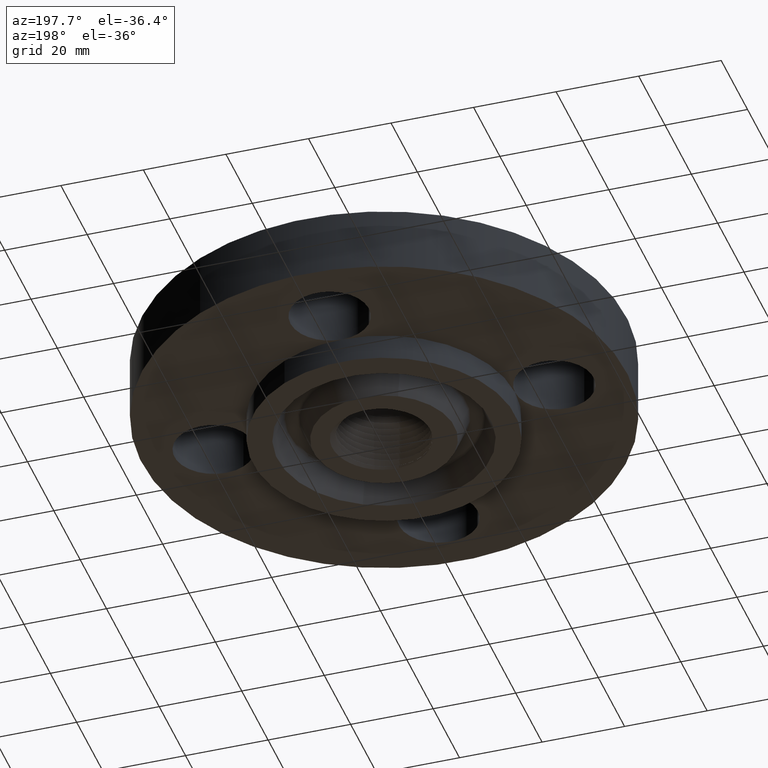
[diagram: clean part render]
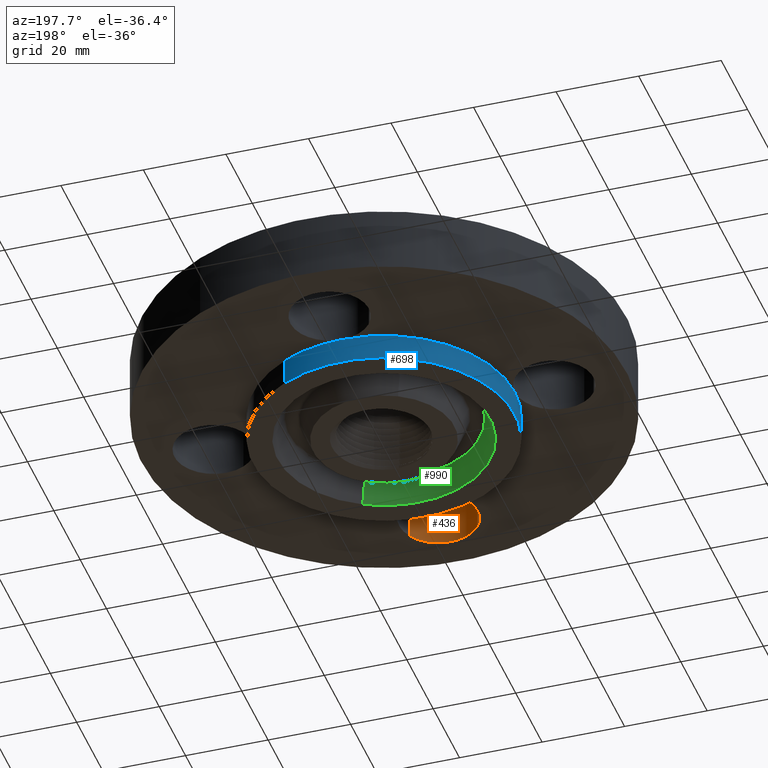
[diagram: same view with three faces highlighted in distinct colors, each labeled with its STEP entity id]
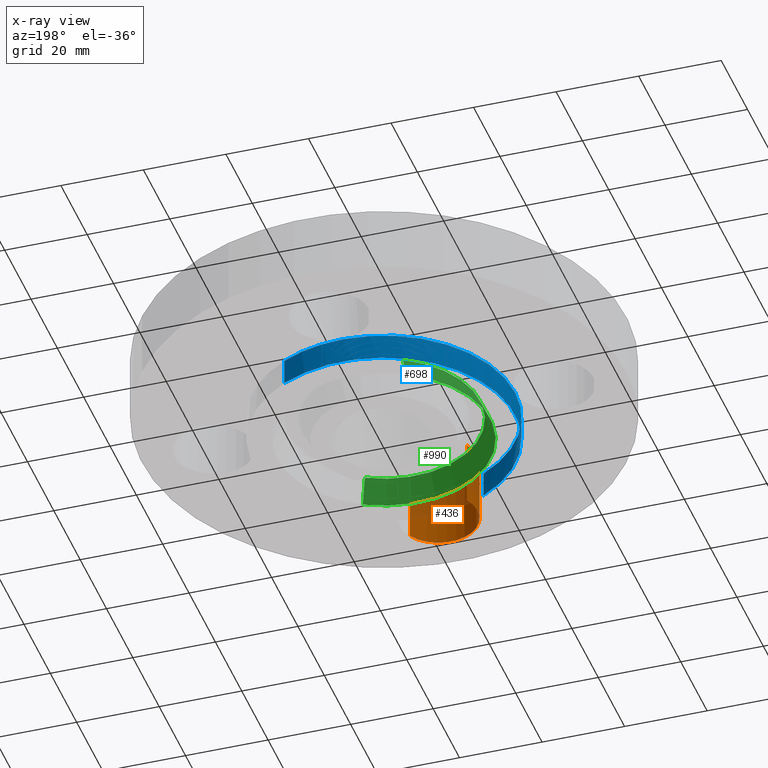
[diagram: x-ray of the same camera — body ghosted, the three highlighted faces saturated]
A machine part, auxiliary view with three faces highlighted in distinct colors.
The next image is the same camera in x-ray (body ghosted, the three faces saturated) — at least one of them is partly hidden behind the body in this view.
Their STEP definitions:

[orange] entity #436 — the highlighted cylindrical surface (partial cylindrical patch) has radius 9.525 mm, axis along (-0, 0, -1).
#375=AXIS2_PLACEMENT_3D('Cylinder Axis2P3D',#372,#373,#374) ;
#422=AXIS2_PLACEMENT_3D('Circle Axis2P3D',#420,#421,$) ;
#427=AXIS2_PLACEMENT_3D('Circle Axis2P3D',#425,#426,$) ;
#372=CARTESIAN_POINT('Axis2P3D Location',(1.99005104862E-016,-1.62500000001,0.616062992128)) ;
#377=CARTESIAN_POINT('Line Origine',(-0.32909346071,-1.44521542303,0.310000000001)) ;
#381=CARTESIAN_POINT('Vertex',(-0.32909346071,-1.44521542303,0.)) ;
#383=CARTESIAN_POINT('Vertex',(-0.32909346071,-1.44521542303,0.620000000002)) ;
#397=CARTESIAN_POINT('Vertex',(0.32909346071,-1.80478457698,0.)) ;
#400=CARTESIAN_POINT('Line Origine',(0.32909346071,-1.80478457698,0.310000000001)) ;
#404=CARTESIAN_POINT('Vertex',(0.32909346071,-1.80478457698,0.620000000002)) ;
#420=CARTESIAN_POINT('Axis2P3D Location',(1.99005104862E-016,-1.62500000001,0.)) ;
#425=CARTESIAN_POINT('Axis2P3D Location',(1.99005104862E-016,-1.62500000001,0.620000000002)) ;
#373=DIRECTION('Axis2P3D Direction',(-0.,0.,-0.0393700787402)) ;
#374=DIRECTION('Axis2P3D XDirection',(0.0345504945626,-0.0188750212049,-0.)) ;
#378=DIRECTION('Vector Direction',(0.,0.,-0.0393700787402)) ;
#401=DIRECTION('Vector Direction',(0.,0.,-0.0393700787402)) ;
#421=DIRECTION('Axis2P3D Direction',(-0.,0.,-0.0393700787402)) ;
#426=DIRECTION('Axis2P3D Direction',(-0.,0.,-0.0393700787402)) ;
#379=VECTOR('Line Direction',#378,0.0393700787402) ;
#402=VECTOR('Line Direction',#401,0.0393700787402) ;
#431=ORIENTED_EDGE('',*,*,#406,.F.) ;
#432=ORIENTED_EDGE('',*,*,#424,.T.) ;
#433=ORIENTED_EDGE('',*,*,#385,.T.) ;
#434=ORIENTED_EDGE('',*,*,#429,.F.) ;
#436=ADVANCED_FACE('PartBody',(#435),#376,.F.) ;
#423=CIRCLE('generated circle',#422,0.375000000001) ;
#428=CIRCLE('generated circle',#427,0.375000000001) ;
#376=CYLINDRICAL_SURFACE('generated cylinder',#375,0.375000000001) ;
#385=EDGE_CURVE('',#382,#384,#380,.F.) ;
#406=EDGE_CURVE('',#398,#405,#403,.F.) ;
#424=EDGE_CURVE('',#398,#382,#423,.T.) ;
#429=EDGE_CURVE('',#405,#384,#428,.T.) ;
#430=EDGE_LOOP('',(#431,#432,#433,#434)) ;
#435=FACE_OUTER_BOUND('',#430,.T.) ;
#380=LINE('Line',#377,#379) ;
#403=LINE('Line',#400,#402) ;
#382=VERTEX_POINT('',#381) ;
#384=VERTEX_POINT('',#383) ;
#398=VERTEX_POINT('',#397) ;
#405=VERTEX_POINT('',#404) ;

[blue] entity #698 — the highlighted cylindrical surface (partial cylindrical patch) has radius 31.75 mm, axis along (0, 0, -1).
#346=AXIS2_PLACEMENT_3D('Circle Axis2P3D',#344,#345,$) ;
#604=AXIS2_PLACEMENT_3D('Circle Axis2P3D',#602,#603,$) ;
#630=AXIS2_PLACEMENT_3D('Circle Axis2P3D',#628,#629,$) ;
#635=AXIS2_PLACEMENT_3D('Circle Axis2P3D',#633,#634,$) ;
#669=AXIS2_PLACEMENT_3D('Cylinder Axis2P3D',#666,#667,#668) ;
#339=CARTESIAN_POINT('Vertex',(0.599281923258,1.09697820237,-0.250000000001)) ;
#341=CARTESIAN_POINT('Vertex',(-0.599281923258,-1.09697820237,-0.250000000001)) ;
#344=CARTESIAN_POINT('Axis2P3D Location',(0.,0.,-0.250000000001)) ;
#455=CARTESIAN_POINT('Vertex',(-1.25000000001,-1.39870617276E-016,0.)) ;
#599=CARTESIAN_POINT('Vertex',(0.599281923258,1.09697820237,0.)) ;
#602=CARTESIAN_POINT('Axis2P3D Location',(0.,0.,0.)) ;
#606=CARTESIAN_POINT('Vertex',(3.90510912389E-015,1.25000000001,0.)) ;
#628=CARTESIAN_POINT('Axis2P3D Location',(0.,0.,0.)) ;
#633=CARTESIAN_POINT('Axis2P3D Location',(0.,0.,0.)) ;
#637=CARTESIAN_POINT('Vertex',(-0.599281923258,-1.09697820237,0.)) ;
#666=CARTESIAN_POINT('Axis2P3D Location',(0.,0.,0.375000000002)) ;
#671=CARTESIAN_POINT('Line Origine',(0.599281923258,1.09697820237,-0.125)) ;
#676=CARTESIAN_POINT('Line Origine',(-0.599281923258,-1.09697820237,-0.125)) ;
#345=DIRECTION('Axis2P3D Direction',(0.,0.,-0.0393700787402)) ;
#603=DIRECTION('Axis2P3D Direction',(0.,0.,-0.0393700787402)) ;
#629=DIRECTION('Axis2P3D Direction',(0.,0.,-0.0393700787402)) ;
#634=DIRECTION('Axis2P3D Direction',(0.,0.,-0.0393700787402)) ;
#667=DIRECTION('Axis2P3D Direction',(0.,0.,-0.0393700787402)) ;
#668=DIRECTION('Axis2P3D XDirection',(-0.0188750212049,-0.0345504945626,0.)) ;
#672=DIRECTION('Vector Direction',(0.,0.,-0.0393700787402)) ;
#677=DIRECTION('Vector Direction',(0.,0.,-0.0393700787402)) ;
#673=VECTOR('Line Direction',#672,0.0393700787402) ;
#678=VECTOR('Line Direction',#677,0.0393700787402) ;
#691=ORIENTED_EDGE('',*,*,#348,.F.) ;
#692=ORIENTED_EDGE('',*,*,#680,.T.) ;
#693=ORIENTED_EDGE('',*,*,#639,.T.) ;
#694=ORIENTED_EDGE('',*,*,#632,.T.) ;
#695=ORIENTED_EDGE('',*,*,#608,.T.) ;
#696=ORIENTED_EDGE('',*,*,#675,.F.) ;
#698=ADVANCED_FACE('PartBody',(#697),#670,.T.) ;
#347=CIRCLE('generated circle',#346,1.25000000001) ;
#605=CIRCLE('generated circle',#604,1.25000000001) ;
#631=CIRCLE('generated circle',#630,1.25000000001) ;
#636=CIRCLE('generated circle',#635,1.25000000001) ;
#670=CYLINDRICAL_SURFACE('generated cylinder',#669,1.25000000001) ;
#348=EDGE_CURVE('',#342,#340,#347,.T.) ;
#608=EDGE_CURVE('',#607,#600,#605,.T.) ;
#632=EDGE_CURVE('',#456,#607,#631,.T.) ;
#639=EDGE_CURVE('',#638,#456,#636,.T.) ;
#675=EDGE_CURVE('',#340,#600,#674,.F.) ;
#680=EDGE_CURVE('',#342,#638,#679,.F.) ;
#690=EDGE_LOOP('',(#691,#692,#693,#694,#695,#696)) ;
#697=FACE_OUTER_BOUND('',#690,.T.) ;
#674=LINE('Line',#671,#673) ;
#679=LINE('Line',#676,#678) ;
#340=VERTEX_POINT('',#339) ;
#342=VERTEX_POINT('',#341) ;
#456=VERTEX_POINT('',#455) ;
#600=VERTEX_POINT('',#599) ;
#607=VERTEX_POINT('',#606) ;
#638=VERTEX_POINT('',#637) ;

[green] entity #990 — the highlighted conical surface has half-angle 23 deg.
#355=AXIS2_PLACEMENT_3D('Circle Axis2P3D',#353,#354,$) ;
#936=AXIS2_PLACEMENT_3D('Circle Axis2P3D',#934,#935,$) ;
#972=AXIS2_PLACEMENT_3D('Cone Axis2P3D',#969,#970,#971) ;
#353=CARTESIAN_POINT('Axis2P3D Location',(-6.99353086378E-017,0.,-0.250000000001)) ;
#357=CARTESIAN_POINT('Vertex',(0.486916562647,-0.891294789423,-0.250000000001)) ;
#359=CARTESIAN_POINT('Vertex',(-0.486916562647,0.891294789423,-0.250000000001)) ;
#934=CARTESIAN_POINT('Axis2P3D Location',(0.,0.,-0.0190396522348)) ;
#938=CARTESIAN_POINT('Vertex',(-0.439915192472,0.805259358414,-0.0190396522348)) ;
#940=CARTESIAN_POINT('Vertex',(0.439915192472,-0.805259358414,-0.0190396522348)) ;
#969=CARTESIAN_POINT('Axis2P3D Location',(0.,0.,-0.0190396522348)) ;
#974=CARTESIAN_POINT('Line Origine',(-0.463415877559,0.848277073919,-0.134519826118)) ;
#979=CARTESIAN_POINT('Line Origine',(0.463415877559,-0.848277073919,-0.134519826118)) ;
#354=DIRECTION('Axis2P3D Direction',(0.,0.,-0.0393700787402)) ;
#935=DIRECTION('Axis2P3D Direction',(0.,0.,0.0393700787402)) ;
#970=DIRECTION('Axis2P3D Direction',(-0.,-0.,-0.0393700787402)) ;
#971=DIRECTION('Axis2P3D XDirection',(-0.0188750212049,0.0345504945626,0.)) ;
#975=DIRECTION('Vector Direction',(-0.00737505833565,0.0134999537303,-0.0362403485611)) ;
#980=DIRECTION('Vector Direction',(0.00737505833565,-0.0134999537303,-0.0362403485611)) ;
#976=VECTOR('Line Direction',#975,0.0393700787402) ;
#981=VECTOR('Line Direction',#980,0.0393700787402) ;
#985=ORIENTED_EDGE('',*,*,#361,.T.) ;
#986=ORIENTED_EDGE('',*,*,#978,.T.) ;
#987=ORIENTED_EDGE('',*,*,#942,.T.) ;
#988=ORIENTED_EDGE('',*,*,#983,.F.) ;
#990=ADVANCED_FACE('PartBody',(#989),#973,.F.) ;
#356=CIRCLE('generated circle',#355,1.015625) ;
#937=CIRCLE('generated circle',#936,0.917588148834) ;
#973=CONICAL_SURFACE('Cone',#972,0.917588148834,0.401425727959) ;
#361=EDGE_CURVE('',#358,#360,#356,.T.) ;
#942=EDGE_CURVE('',#939,#941,#937,.T.) ;
#978=EDGE_CURVE('',#360,#939,#977,.F.) ;
#983=EDGE_CURVE('',#358,#941,#982,.F.) ;
#984=EDGE_LOOP('',(#985,#986,#987,#988)) ;
#989=FACE_OUTER_BOUND('',#984,.T.) ;
#977=LINE('Line',#974,#976) ;
#982=LINE('Line',#979,#981) ;
#358=VERTEX_POINT('',#357) ;
#360=VERTEX_POINT('',#359) ;
#939=VERTEX_POINT('',#938) ;
#941=VERTEX_POINT('',#940) ;